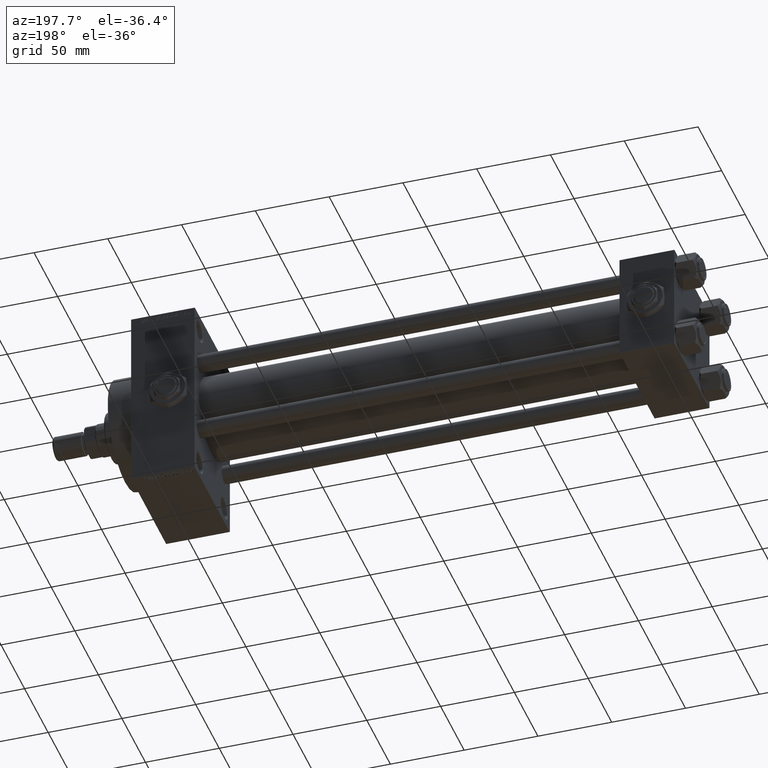
[diagram: clean part render]
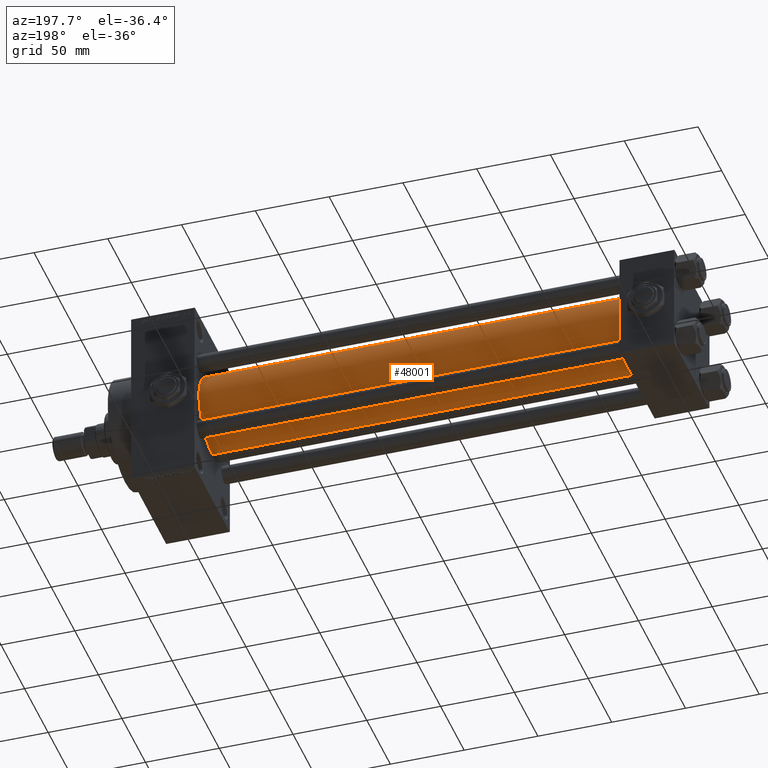
[diagram: same view with one face highlighted and labeled with its STEP entity id]
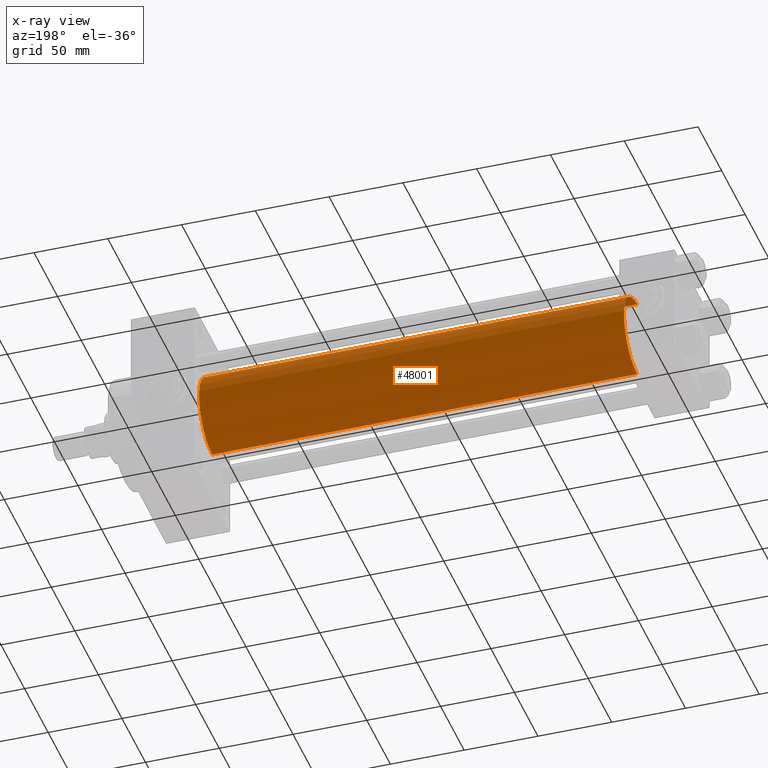
[diagram: x-ray of the same camera — body ghosted, the highlighted face saturated]
A machine part, auxiliary view. The second image highlights one B-rep face of the part: STEP entity #48001.
The next image is the same camera in x-ray: the body ghosted, the highlighted face saturated — about 0% of this face is hidden behind the body in this view.
In plain terms, the highlighted cylindrical surface (partial cylindrical patch) has radius 28 mm, axis along (-1, -0, -0).
Its self-contained STEP definition (entity closure, byte-faithful):
#127 = DIRECTION ( 'NONE',  ( 1.000000000000000000, 0.000000000000000000, 0.000000000000000000 ) ) ;
#1420 = CARTESIAN_POINT ( 'NONE',  ( 324.9999999999999432, 8.269258236473784371E-16, -28.00000000000000000 ) ) ;
#3363 = DIRECTION ( 'NONE',  ( -1.000000000000000000, -0.000000000000000000, -0.000000000000000000 ) ) ;
#3997 = VERTEX_POINT ( 'NONE', #8605 ) ;
#4139 = CARTESIAN_POINT ( 'NONE',  ( 324.9999999999999432, -2.602085213965210642E-15, 0.000000000000000000 ) ) ;
#8605 = CARTESIAN_POINT ( 'NONE',  ( 324.9999999999999432, -2.602085213965210642E-15, 28.00000000000000000 ) ) ;
#10207 = LINE ( 'NONE', #22584, #12431 ) ;
#10936 = CYLINDRICAL_SURFACE ( 'NONE', #38027, 28.00000000000000000 ) ;
#11387 = EDGE_CURVE ( 'NONE', #30196, #3997, #33243, .T. ) ;
#12431 = VECTOR ( 'NONE', #3363, 1000.000000000000000 ) ;
#13320 = EDGE_CURVE ( 'NONE', #3997, #27754, #18605, .T. ) ;
#14053 = CIRCLE ( 'NONE', #25343, 28.00000000000000000 ) ;
#15869 = EDGE_CURVE ( 'NONE', #30196, #38259, #10207, .T. ) ;
#16282 = CARTESIAN_POINT ( 'NONE',  ( 36.99999999999997868, -2.602085213965210642E-15, 28.00000000000000000 ) ) ;
#17337 = ORIENTED_EDGE ( 'NONE', *, *, #11387, .F. ) ;
#18252 = DIRECTION ( 'NONE',  ( 0.000000000000000000, 0.000000000000000000, 1.000000000000000000 ) ) ;
#18605 = LINE ( 'NONE', #41106, #34126 ) ;
#19857 = CARTESIAN_POINT ( 'NONE',  ( 36.99999999999997868, 8.269258236473784371E-16, -28.00000000000000000 ) ) ;
#21547 = FACE_OUTER_BOUND ( 'NONE', #26878, .T. ) ;
#22584 = CARTESIAN_POINT ( 'NONE',  ( 324.9999999999999432, 8.269258236473784371E-16, -28.00000000000000000 ) ) ;
#25175 = EDGE_CURVE ( 'NONE', #38259, #27754, #14053, .T. ) ;
#25343 = AXIS2_PLACEMENT_3D ( 'NONE', #35484, #27417, #42573 ) ;
#25386 = ORIENTED_EDGE ( 'NONE', *, *, #25175, .T. ) ;
#26878 = EDGE_LOOP ( 'NONE', ( #17337, #35790, #25386, #42237 ) ) ;
#27417 = DIRECTION ( 'NONE',  ( 1.000000000000000000, -0.000000000000000000, 0.000000000000000000 ) ) ;
#27754 = VERTEX_POINT ( 'NONE', #16282 ) ;
#29628 = CARTESIAN_POINT ( 'NONE',  ( 324.9999999999999432, -2.602085213965210642E-15, 0.000000000000000000 ) ) ;
#30196 = VERTEX_POINT ( 'NONE', #1420 ) ;
#30485 = DIRECTION ( 'NONE',  ( -1.000000000000000000, -0.000000000000000000, -0.000000000000000000 ) ) ;
#33243 = CIRCLE ( 'NONE', #37259, 28.00000000000000000 ) ;
#34126 = VECTOR ( 'NONE', #30485, 1000.000000000000000 ) ;
#35484 = CARTESIAN_POINT ( 'NONE',  ( 36.99999999999997868, -2.602085213965210642E-15, 0.000000000000000000 ) ) ;
#35790 = ORIENTED_EDGE ( 'NONE', *, *, #15869, .T. ) ;
#37259 = AXIS2_PLACEMENT_3D ( 'NONE', #4139, #127, #38530 ) ;
#38027 = AXIS2_PLACEMENT_3D ( 'NONE', #29628, #45048, #18252 ) ;
#38259 = VERTEX_POINT ( 'NONE', #19857 ) ;
#38530 = DIRECTION ( 'NONE',  ( 0.000000000000000000, 0.000000000000000000, -1.000000000000000000 ) ) ;
#41106 = CARTESIAN_POINT ( 'NONE',  ( 324.9999999999999432, -2.602085213965210642E-15, 28.00000000000000000 ) ) ;
#42237 = ORIENTED_EDGE ( 'NONE', *, *, #13320, .F. ) ;
#42573 = DIRECTION ( 'NONE',  ( 0.000000000000000000, 0.000000000000000000, 1.000000000000000000 ) ) ;
#45048 = DIRECTION ( 'NONE',  ( -1.000000000000000000, -0.000000000000000000, -0.000000000000000000 ) ) ;
#48001 = ADVANCED_FACE ( 'NONE', ( #21547 ), #10936, .T. ) ;